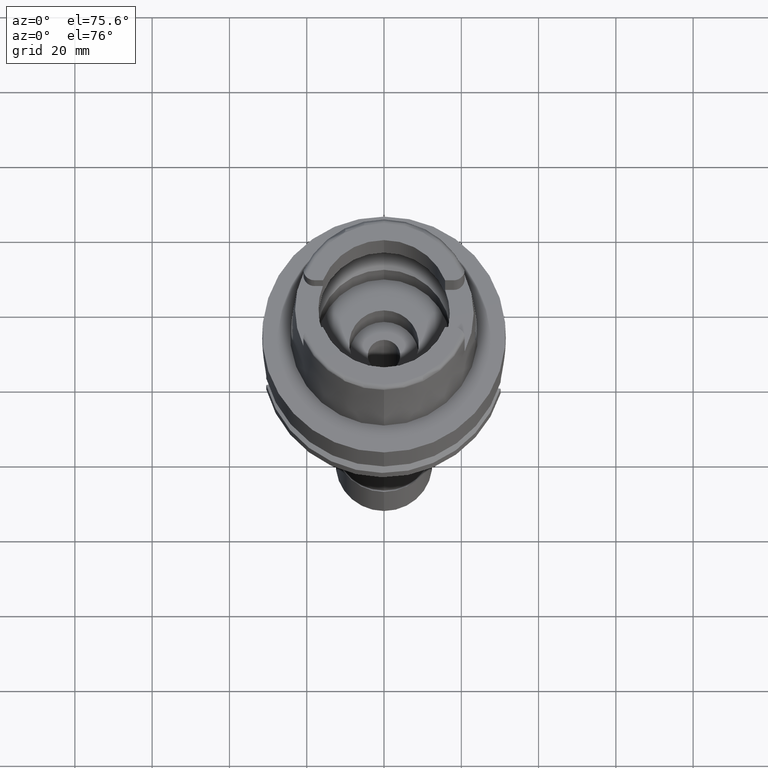
[diagram: clean part render]
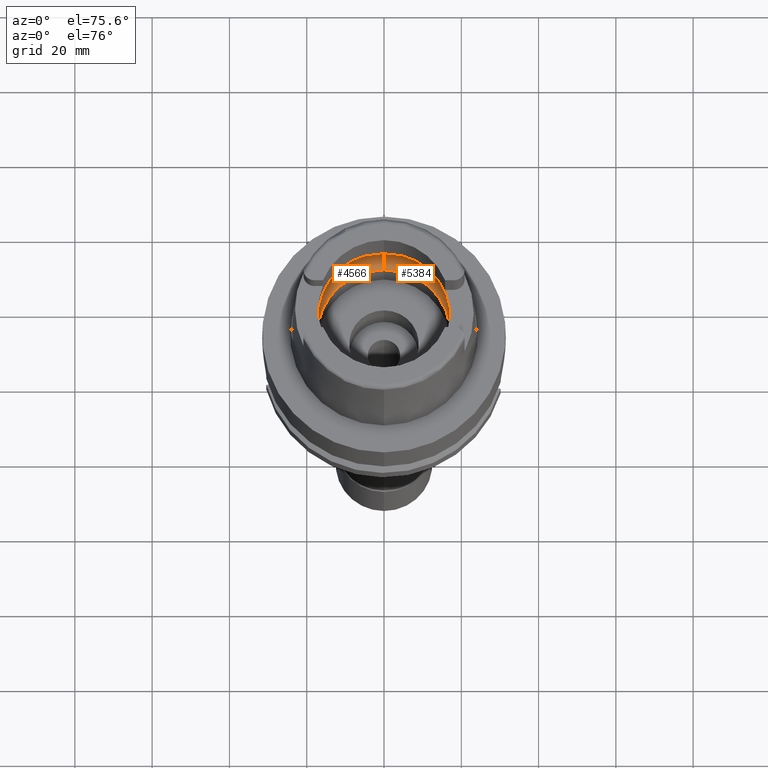
[diagram: same view with one multi-face feature highlighted, each face labeled with its STEP entity id]
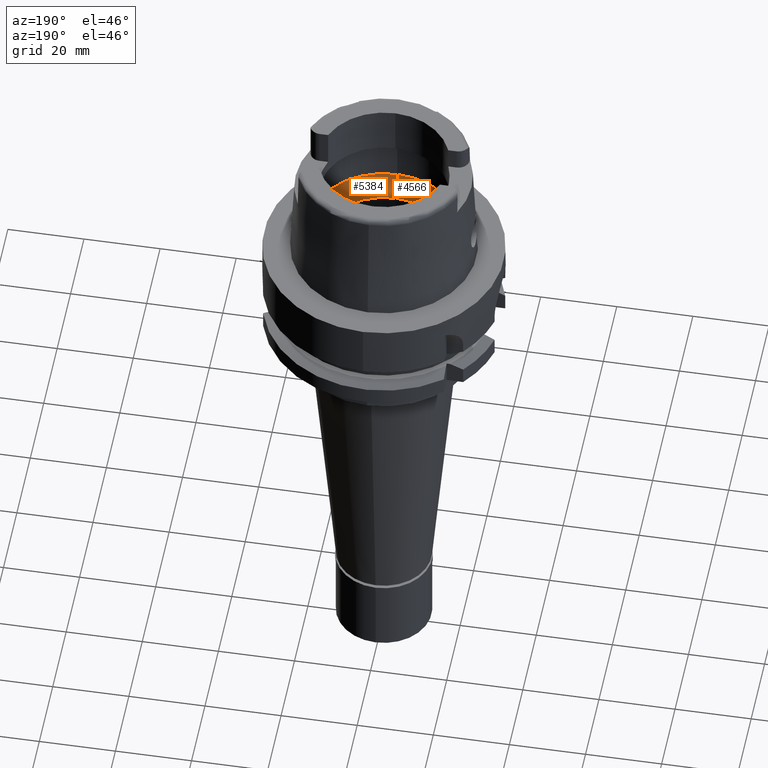
[diagram: same view with one multi-face feature highlighted, each face labeled with its STEP entity id]
A machine part, auxiliary view. The highlighted faces form ONE feature: a constant-radius fillet chain: 2 tangent blend faces with common blend radius 8 mm. The faces share edges in the B-rep.
A second angle (auxiliary view) of the same feature is appended — it is thin or edge-on in the first view.
Their STEP definitions:
[1] entity #4566 (Torus):
#82 = CARTESIAN_POINT ( 'NONE',  ( 0.0000000000000000000, 0.0000000000000000000, 6.186348233825000875 ) ) ;
#93 = CARTESIAN_POINT ( 'NONE',  ( -19.86453683446996266, -2.328760709817148111, 6.053898515773700417 ) ) ;
#103 = DIRECTION ( 'NONE',  ( 0.0000000000000000000, 1.000000000000000000, 0.0000000000000000000 ) ) ;
#300 = CIRCLE ( 'NONE', #3393, 7.999999999999992895 ) ;
#459 = DIRECTION ( 'NONE',  ( 0.0000000000000000000, 0.0000000000000000000, 1.000000000000000000 ) ) ;
#461 = CARTESIAN_POINT ( 'NONE',  ( -19.88058468752640806, -2.158466029911068951, 5.925243478961304433 ) ) ;
#463 = AXIS2_PLACEMENT_3D ( 'NONE', #82, #5160, #1384 ) ;
#500 = FACE_OUTER_BOUND ( 'NONE', #4310, .T. ) ;
#515 = CARTESIAN_POINT ( 'NONE',  ( -19.92466831866535770, -1.358331184285348270, 5.504646393194166265 ) ) ;
#556 = DIRECTION ( 'NONE',  ( 0.0000000000000000000, -1.000000000000000000, 0.0000000000000000000 ) ) ;
#574 = CARTESIAN_POINT ( 'NONE',  ( -19.93856410866583317, -0.9461212226835923333, 5.348254255821970560 ) ) ;
#677 = CARTESIAN_POINT ( 'NONE',  ( -19.90995254882344412, 1.795933974831515068, 5.670404978818013753 ) ) ;
#803 = DIRECTION ( 'NONE',  ( 1.000000000000000000, 0.0000000000000000000, 0.0000000000000000000 ) ) ;
#873 = CARTESIAN_POINT ( 'NONE',  ( 0.0000000000000000000, 17.25000000000000000, 0.1500000000000999700 ) ) ;
#888 = CARTESIAN_POINT ( 'NONE',  ( 0.0000000000000000000, -12.00000000000000000, 6.186348233825000875 ) ) ;
#963 = CARTESIAN_POINT ( 'NONE',  ( -19.91447752810589833, -1.610669004317299313, 5.613000827215236299 ) ) ;
#987 = CARTESIAN_POINT ( 'NONE',  ( -19.84575864665999845, -2.479085262491000030, 6.186348233825000875 ) ) ;
#994 = DIRECTION ( 'NONE',  ( 0.0000000000000000000, -0.6562500000000006661, -0.7545435292281016393 ) ) ;
#1007 = CIRCLE ( 'NONE', #3622, 17.25000000000000000 ) ;
#1239 = EDGE_CURVE ( 'NONE', #5267, #4992, #4741, .T. ) ;
#1272 = DIRECTION ( 'NONE',  ( 0.0000000000000000000, 0.6562500000000006661, -0.7545435292281016393 ) ) ;
#1317 = CARTESIAN_POINT ( 'NONE',  ( -19.92517003708521273, -1.343826440312797077, 5.499044281752649255 ) ) ;
#1333 = CARTESIAN_POINT ( 'NONE',  ( 0.0000000000000000000, -17.25000000000000000, 0.1500000000000999700 ) ) ;
#1379 = CARTESIAN_POINT ( 'NONE',  ( 0.0000000000000000000, 0.0000000000000000000, 6.186348233825000875 ) ) ;
#1384 = DIRECTION ( 'NONE',  ( -0.9922879323327794543, 0.1239542631244973381, 0.0000000000000000000 ) ) ;
#1520 = CARTESIAN_POINT ( 'NONE',  ( -19.94501428475999916, 0.0000000000000000000, 5.250000000000000000 ) ) ;
#1522 = AXIS2_PLACEMENT_3D ( 'NONE', #1379, #3094, #103 ) ;
#1533 = AXIS2_PLACEMENT_3D ( 'NONE', #4136, #803, #1272 ) ;
#1550 = CARTESIAN_POINT ( 'NONE',  ( -19.92705277426681576, 1.287130182688421165, 5.477772523843790431 ) ) ;
#1551 = VERTEX_POINT ( 'NONE', #3120 ) ;
#1633 = CARTESIAN_POINT ( 'NONE',  ( -19.92839760417749062, 1.244563448290384899, 5.462382440187010246 ) ) ;
#1693 = VERTEX_POINT ( 'NONE', #2759 ) ;
#1698 = CARTESIAN_POINT ( 'NONE',  ( -19.90653714044385936, -1.770134880955051226, 5.691950022312413537 ) ) ;
#1805 = ORIENTED_EDGE ( 'NONE', *, *, #3163, .F. ) ;
#1851 = EDGE_CURVE ( 'NONE', #2835, #2870, #1007, .T. ) ;
#1917 = CARTESIAN_POINT ( 'NONE',  ( 0.0000000000000000000, -20.00000000000000000, 6.186348233825000875 ) ) ;
#1960 = CARTESIAN_POINT ( 'NONE',  ( -19.93095498564698076, 1.158122524600810666, 5.432638017440244660 ) ) ;
#2018 = CARTESIAN_POINT ( 'NONE',  ( -19.92606541085463689, 1.317269455711140846, 5.488968463726680014 ) ) ;
#2127 = ORIENTED_EDGE ( 'NONE', *, *, #3196, .F. ) ;
#2143 = CARTESIAN_POINT ( 'NONE',  ( -19.92546218847456529, -1.335248582686434426, 5.495766530070138600 ) ) ;
#2170 = ORIENTED_EDGE ( 'NONE', *, *, #4491, .F. ) ;
#2227 = CARTESIAN_POINT ( 'NONE',  ( -19.92207706994746985, -1.430236285583133204, 5.533216425421237261 ) ) ;
#2350 = CARTESIAN_POINT ( 'NONE',  ( -19.88331748051938064, 2.178416478297318104, 5.921431458854276464 ) ) ;
#2759 = CARTESIAN_POINT ( 'NONE',  ( 0.0000000000000000000, 20.00000000000000000, 6.186348233825000875 ) ) ;
#2762 = AXIS2_PLACEMENT_3D ( 'NONE', #3190, #4744, #556 ) ;
#2835 = VERTEX_POINT ( 'NONE', #873 ) ;
#2870 = VERTEX_POINT ( 'NONE', #1333 ) ;
#3033 = CARTESIAN_POINT ( 'NONE',  ( -19.94501428475999916, 0.0000000000000000000, 5.250000000000000000 ) ) ;
#3094 = DIRECTION ( 'NONE',  ( 0.0000000000000000000, 0.0000000000000000000, 1.000000000000000000 ) ) ;
#3120 = CARTESIAN_POINT ( 'NONE',  ( -19.84575864665999845, -2.479085262491000030, 6.186348233825000875 ) ) ;
#3127 = TOROIDAL_SURFACE ( 'NONE', #1522, 12.00000000000000000, 8.000000000000000000 ) ;
#3163 = EDGE_CURVE ( 'NONE', #4992, #1693, #4855, .T. ) ;
#3190 = CARTESIAN_POINT ( 'NONE',  ( 0.0000000000000000000, 0.0000000000000000000, 6.186348233825000875 ) ) ;
#3196 = EDGE_CURVE ( 'NONE', #3910, #1551, #4246, .T. ) ;
#3327 = CARTESIAN_POINT ( 'NONE',  ( -19.94340174866101734, 0.4850934535354030630, 5.274617952747172822 ) ) ;
#3328 = ORIENTED_EDGE ( 'NONE', *, *, #5071, .F. ) ;
#3393 = AXIS2_PLACEMENT_3D ( 'NONE', #888, #4243, #994 ) ;
#3423 = CARTESIAN_POINT ( 'NONE',  ( -19.91819175305377243, -1.528964846757111973, 5.574905751837347267 ) ) ;
#3513 = B_SPLINE_CURVE_WITH_KNOTS ( 'NONE', 3,
 ( #987, #93, #461, #5089, #1698, #963, #3423, #2227, #5062, #515, #1317, #2143, #574, #4673, #3033 ),
 .UNSPECIFIED., .F., .F.,
 ( 4, 2, 2, 1, 1, 1, 2, 2, 4 ),
 ( 0.0000000000000000000, 0.2500000000000016653, 0.3750000000000023870, 0.4375000000000028866, 0.4687500000000030531, 0.4843750000000031641, 0.4921875000000032196, 0.5000000000000032196, 1.000000000000000000 ),
 .UNSPECIFIED. ) ;
#3609 = CARTESIAN_POINT ( 'NONE',  ( -19.94501428475999916, 0.0000000000000000000, 5.250000000000000000 ) ) ;
#3622 = AXIS2_PLACEMENT_3D ( 'NONE', #3871, #459, #4315 ) ;
#3624 = CARTESIAN_POINT ( 'NONE',  ( -19.93654847024033927, 0.9262661514275534191, 5.364596242157149142 ) ) ;
#3778 = ORIENTED_EDGE ( 'NONE', *, *, #1239, .F. ) ;
#3871 = CARTESIAN_POINT ( 'NONE',  ( 0.0000000000000000000, 0.0000000000000000000, 0.1500000000000999700 ) ) ;
#3873 = CARTESIAN_POINT ( 'NONE',  ( -19.84575864665999845, 2.479085262489999941, 6.186348233825000875 ) ) ;
#3910 = VERTEX_POINT ( 'NONE', #1917 ) ;
#4023 = ORIENTED_EDGE ( 'NONE', *, *, #4297, .T. ) ;
#4136 = CARTESIAN_POINT ( 'NONE',  ( 0.0000000000000000000, 12.00000000000000000, 6.186348233825000875 ) ) ;
#4138 = CARTESIAN_POINT ( 'NONE',  ( -19.93292026401761419, 1.081805289724191210, 5.409024550128566311 ) ) ;
#4155 = ORIENTED_EDGE ( 'NONE', *, *, #1851, .F. ) ;
#4243 = DIRECTION ( 'NONE',  ( -1.000000000000000000, 0.0000000000000000000, 0.0000000000000000000 ) ) ;
#4246 = CIRCLE ( 'NONE', #2762, 20.00000000000000000 ) ;
#4297 = EDGE_CURVE ( 'NONE', #2835, #1693, #5217, .T. ) ;
#4310 = EDGE_LOOP ( 'NONE', ( #2127, #2170, #4155, #4023, #1805, #3778, #3328 ) ) ;
#4315 = DIRECTION ( 'NONE',  ( 0.0000000000000000000, 1.000000000000000000, 0.0000000000000000000 ) ) ;
#4447 = CARTESIAN_POINT ( 'NONE',  ( -19.92590934067762731, 1.321967662511047470, 5.490731940949380885 ) ) ;
#4491 = EDGE_CURVE ( 'NONE', #2870, #3910, #300, .T. ) ;
#4566 = ADVANCED_FACE ( 'NONE', ( #500 ), #3127, .F. ) ;
#4673 = CARTESIAN_POINT ( 'NONE',  ( -19.94501428475999560, -0.4961209670605932209, 5.249999999999998224 ) ) ;
#4741 = B_SPLINE_CURVE_WITH_KNOTS ( 'NONE', 3,
 ( #1520, #4885, #3327, #4988, #3624, #4138, #1960, #1633, #1550, #4911, #2018, #4447, #677, #2350, #5302 ),
 .UNSPECIFIED., .F., .F.,
 ( 4, 2, 2, 1, 1, 1, 2, 2, 4 ),
 ( 0.0000000000000000000, 0.2500000000000037748, 0.3750000000000058287, 0.4375000000000067168, 0.4687500000000069944, 0.4843750000000072720, 0.4921875000000072720, 0.5000000000000072164, 1.000000000000000000 ),
 .UNSPECIFIED. ) ;
#4744 = DIRECTION ( 'NONE',  ( 0.0000000000000000000, 0.0000000000000000000, -1.000000000000000000 ) ) ;
#4855 = CIRCLE ( 'NONE', #463, 20.00000000000001421 ) ;
#4885 = CARTESIAN_POINT ( 'NONE',  ( -19.94501428476000271, 0.2480393703315448006, 5.249999999999999112 ) ) ;
#4911 = CARTESIAN_POINT ( 'NONE',  ( -19.92646224591025472, 1.305232515153943673, 5.484475949585862153 ) ) ;
#4988 = CARTESIAN_POINT ( 'NONE',  ( -19.93856414036406477, 0.8186926599981305674, 5.338707319452686839 ) ) ;
#4992 = VERTEX_POINT ( 'NONE', #3873 ) ;
#5062 = CARTESIAN_POINT ( 'NONE',  ( -19.92390774200794112, -1.380028552273980136, 5.513104237275524788 ) ) ;
#5071 = EDGE_CURVE ( 'NONE', #1551, #5267, #3513, .T. ) ;
#5089 = CARTESIAN_POINT ( 'NONE',  ( -19.90056096498078375, -1.871180422678105693, 5.748256676446665381 ) ) ;
#5160 = DIRECTION ( 'NONE',  ( 0.0000000000000000000, 0.0000000000000000000, -1.000000000000000000 ) ) ;
#5217 = CIRCLE ( 'NONE', #1533, 7.999999999999992895 ) ;
#5267 = VERTEX_POINT ( 'NONE', #3609 ) ;
#5302 = CARTESIAN_POINT ( 'NONE',  ( -19.84575864665999845, 2.479085262489999941, 6.186348233825000875 ) ) ;
[2] entity #5384 (Torus):
#271 = DIRECTION ( 'NONE',  ( 0.0000000000000000000, 0.0000000000000000000, 1.000000000000000000 ) ) ;
#300 = CIRCLE ( 'NONE', #3393, 7.999999999999992895 ) ;
#306 = CARTESIAN_POINT ( 'NONE',  ( 0.0000000000000000000, 0.0000000000000000000, 6.186348233825000875 ) ) ;
#326 = CARTESIAN_POINT ( 'NONE',  ( 19.92466859728581952, 1.358323626958147345, 5.504643456233413445 ) ) ;
#377 = CARTESIAN_POINT ( 'NONE',  ( 19.94501428475999560, 0.4961178817713813860, 5.250000000000000888 ) ) ;
#547 = CARTESIAN_POINT ( 'NONE',  ( 0.0000000000000000000, 0.0000000000000000000, 6.186348233825000875 ) ) ;
#582 = DIRECTION ( 'NONE',  ( 0.0000000000000000000, 0.0000000000000000000, -1.000000000000000000 ) ) ;
#714 = ORIENTED_EDGE ( 'NONE', *, *, #4635, .F. ) ;
#764 = CARTESIAN_POINT ( 'NONE',  ( 19.94340172547762435, -0.4850964740021785904, 5.274618261423839272 ) ) ;
#792 = EDGE_LOOP ( 'NONE', ( #3847, #714, #5442, #4291, #4934, #1142, #1486 ) ) ;
#803 = DIRECTION ( 'NONE',  ( 1.000000000000000000, 0.0000000000000000000, 0.0000000000000000000 ) ) ;
#817 = CARTESIAN_POINT ( 'NONE',  ( 19.94501428475999560, -0.2480409225904866288, 5.249999999999998224 ) ) ;
#873 = CARTESIAN_POINT ( 'NONE',  ( 0.0000000000000000000, 17.25000000000000000, 0.1500000000000999700 ) ) ;
#888 = CARTESIAN_POINT ( 'NONE',  ( 0.0000000000000000000, -12.00000000000000000, 6.186348233825000875 ) ) ;
#948 = DIRECTION ( 'NONE',  ( 0.0000000000000000000, 1.000000000000000000, 0.0000000000000000000 ) ) ;
#994 = DIRECTION ( 'NONE',  ( 0.0000000000000000000, -0.6562500000000006661, -0.7545435292281016393 ) ) ;
#1050 = EDGE_CURVE ( 'NONE', #5446, #3910, #3741, .T. ) ;
#1055 = CARTESIAN_POINT ( 'NONE',  ( 19.88058486986654572, 2.158464112384509193, 5.925242031513535679 ) ) ;
#1060 = FACE_OUTER_BOUND ( 'NONE', #792, .T. ) ;
#1086 = DIRECTION ( 'NONE',  ( 0.0000000000000000000, 1.000000000000000000, 0.0000000000000000000 ) ) ;
#1134 = CARTESIAN_POINT ( 'NONE',  ( 19.84575864665999845, 2.479085262491000030, 6.186348233825000875 ) ) ;
#1142 = ORIENTED_EDGE ( 'NONE', *, *, #1050, .F. ) ;
#1144 = EDGE_CURVE ( 'NONE', #2870, #2835, #3316, .T. ) ;
#1181 = CARTESIAN_POINT ( 'NONE',  ( 19.92839736527998795, -1.244570816102732236, 5.462385030248712248 ) ) ;
#1217 = CARTESIAN_POINT ( 'NONE',  ( 19.90653740763088919, 1.770130309642983013, 5.691947549107391424 ) ) ;
#1264 = CARTESIAN_POINT ( 'NONE',  ( 19.92207735139349367, 1.430229258461773956, 5.533213523230517517 ) ) ;
#1272 = DIRECTION ( 'NONE',  ( 0.0000000000000000000, 0.6562500000000006661, -0.7545435292281016393 ) ) ;
#1333 = CARTESIAN_POINT ( 'NONE',  ( 0.0000000000000000000, -17.25000000000000000, 0.1500000000000999700 ) ) ;
#1486 = ORIENTED_EDGE ( 'NONE', *, *, #3810, .F. ) ;
#1533 = AXIS2_PLACEMENT_3D ( 'NONE', #4136, #803, #1272 ) ;
#1602 = AXIS2_PLACEMENT_3D ( 'NONE', #547, #582, #948 ) ;
#1631 = AXIS2_PLACEMENT_3D ( 'NONE', #4802, #3574, #5249 ) ;
#1670 = CARTESIAN_POINT ( 'NONE',  ( 19.93856420101220195, 0.9461154250117944642, 5.348253029309250728 ) ) ;
#1690 = CARTESIAN_POINT ( 'NONE',  ( 19.92606513842726912, -1.317277204138124880, 5.488971370721959175 ) ) ;
#1693 = VERTEX_POINT ( 'NONE', #2759 ) ;
#1883 = AXIS2_PLACEMENT_3D ( 'NONE', #306, #271, #1086 ) ;
#1917 = CARTESIAN_POINT ( 'NONE',  ( 0.0000000000000000000, -20.00000000000000000, 6.186348233825000875 ) ) ;
#2029 = CARTESIAN_POINT ( 'NONE',  ( 19.92590906290987363, -1.321975527286320506, 5.490734903793806687 ) ) ;
#2052 = CIRCLE ( 'NONE', #1602, 20.00000000000000000 ) ;
#2114 = CARTESIAN_POINT ( 'NONE',  ( 19.93856404763053547, -0.8186976556962597407, 5.338708415004484564 ) ) ;
#2158 = AXIS2_PLACEMENT_3D ( 'NONE', #3076, #3946, #3193 ) ;
#2376 = B_SPLINE_CURVE_WITH_KNOTS ( 'NONE', 3,
 ( #4541, #817, #764, #2114, #4945, #3738, #2887, #1181, #3788, #2864, #1690, #2029, #4151, #3709, #2831 ),
 .UNSPECIFIED., .F., .F.,
 ( 4, 2, 2, 1, 1, 1, 2, 2, 4 ),
 ( 0.0000000000000000000, 0.2499999999999987232, 0.3749999999999981126, 0.4374999999999977796, 0.4687499999999976130, 0.4843749999999973910, 0.4921874999999975020, 0.4999999999999975575, 1.000000000000000000 ),
 .UNSPECIFIED. ) ;
#2451 = CARTESIAN_POINT ( 'NONE',  ( 19.92546246839948410, 1.335240779489388130, 5.495763556830105756 ) ) ;
#2475 = CARTESIAN_POINT ( 'NONE',  ( 19.92517031495895097, 1.343818775761117967, 5.499041339644736404 ) ) ;
#2759 = CARTESIAN_POINT ( 'NONE',  ( 0.0000000000000000000, 20.00000000000000000, 6.186348233825000875 ) ) ;
#2831 = CARTESIAN_POINT ( 'NONE',  ( 19.84575864665999845, -2.479085262491000030, 6.186348233825000875 ) ) ;
#2835 = VERTEX_POINT ( 'NONE', #873 ) ;
#2864 = CARTESIAN_POINT ( 'NONE',  ( 19.92646197918816497, -1.305240201015200885, 5.484478803106744849 ) ) ;
#2870 = VERTEX_POINT ( 'NONE', #1333 ) ;
#2887 = CARTESIAN_POINT ( 'NONE',  ( 19.93095478351687788, -1.158129430943444449, 5.432640251379964980 ) ) ;
#2892 = CARTESIAN_POINT ( 'NONE',  ( 19.91447780742437246, 1.610663291711310841, 5.612998104004511823 ) ) ;
#3076 = CARTESIAN_POINT ( 'NONE',  ( 0.0000000000000000000, 0.0000000000000000000, 6.186348233825000875 ) ) ;
#3125 = TOROIDAL_SURFACE ( 'NONE', #1883, 12.00000000000000000, 8.000000000000000000 ) ;
#3156 = CARTESIAN_POINT ( 'NONE',  ( 19.86453694063900954, 2.328759859908619223, 6.053897766926341184 ) ) ;
#3193 = DIRECTION ( 'NONE',  ( 0.9922879323327794543, -0.1239542631244973381, 0.0000000000000000000 ) ) ;
#3316 = CIRCLE ( 'NONE', #1631, 17.25000000000000000 ) ;
#3393 = AXIS2_PLACEMENT_3D ( 'NONE', #888, #4243, #994 ) ;
#3480 = CARTESIAN_POINT ( 'NONE',  ( 19.94501428475999916, 0.0000000000000000000, 5.250000000000000000 ) ) ;
#3574 = DIRECTION ( 'NONE',  ( 0.0000000000000000000, 0.0000000000000000000, 1.000000000000000000 ) ) ;
#3617 = CARTESIAN_POINT ( 'NONE',  ( 19.84575864665999845, 2.479085262491000030, 6.186348233825000875 ) ) ;
#3709 = CARTESIAN_POINT ( 'NONE',  ( 19.88331726735226113, -2.178418184679663749, 5.921432962333624594 ) ) ;
#3722 = CARTESIAN_POINT ( 'NONE',  ( 19.84575864665999845, -2.479085262491000030, 6.186348233825000875 ) ) ;
#3738 = CARTESIAN_POINT ( 'NONE',  ( 19.93292009014225385, -1.081811776603662567, 5.409026499425241497 ) ) ;
#3741 = CIRCLE ( 'NONE', #2158, 20.00000000000001421 ) ;
#3770 = CARTESIAN_POINT ( 'NONE',  ( 19.92390802166061903, 1.380021155214873119, 5.513101308918829879 ) ) ;
#3788 = CARTESIAN_POINT ( 'NONE',  ( 19.92705251603473471, -1.287137774195317608, 5.477775297526381593 ) ) ;
#3810 = EDGE_CURVE ( 'NONE', #4636, #5446, #2376, .T. ) ;
#3847 = ORIENTED_EDGE ( 'NONE', *, *, #4822, .F. ) ;
#3910 = VERTEX_POINT ( 'NONE', #1917 ) ;
#3946 = DIRECTION ( 'NONE',  ( 0.0000000000000000000, 0.0000000000000000000, -1.000000000000000000 ) ) ;
#4136 = CARTESIAN_POINT ( 'NONE',  ( 0.0000000000000000000, 12.00000000000000000, 6.186348233825000875 ) ) ;
#4151 = CARTESIAN_POINT ( 'NONE',  ( 19.90995224292280597, -1.795938310847502217, 5.670407811397693898 ) ) ;
#4243 = DIRECTION ( 'NONE',  ( -1.000000000000000000, 0.0000000000000000000, 0.0000000000000000000 ) ) ;
#4291 = ORIENTED_EDGE ( 'NONE', *, *, #1144, .F. ) ;
#4297 = EDGE_CURVE ( 'NONE', #2835, #1693, #5217, .T. ) ;
#4491 = EDGE_CURVE ( 'NONE', #2870, #3910, #300, .T. ) ;
#4541 = CARTESIAN_POINT ( 'NONE',  ( 19.94501428475999916, 0.0000000000000000000, 5.250000000000000000 ) ) ;
#4635 = EDGE_CURVE ( 'NONE', #1693, #4817, #2052, .T. ) ;
#4636 = VERTEX_POINT ( 'NONE', #3480 ) ;
#4802 = CARTESIAN_POINT ( 'NONE',  ( 0.0000000000000000000, 0.0000000000000000000, 0.1500000000000999700 ) ) ;
#4817 = VERTEX_POINT ( 'NONE', #3617 ) ;
#4822 = EDGE_CURVE ( 'NONE', #4817, #4636, #4823, .T. ) ;
#4823 = B_SPLINE_CURVE_WITH_KNOTS ( 'NONE', 3,
 ( #1134, #3156, #1055, #4845, #1217, #2892, #4927, #1264, #3770, #326, #2475, #2451, #1670, #377, #5374 ),
 .UNSPECIFIED., .F., .F.,
 ( 4, 2, 2, 1, 1, 1, 2, 2, 4 ),
 ( 0.0000000000000000000, 0.2499999999999978906, 0.3749999999999969469, 0.4374999999999963363, 0.4687499999999959477, 0.4843749999999960587, 0.4921874999999960032, 0.4999999999999960032, 1.000000000000000000 ),
 .UNSPECIFIED. ) ;
#4845 = CARTESIAN_POINT ( 'NONE',  ( 19.90056121658070509, 1.871176557661653028, 5.748254428408765548 ) ) ;
#4927 = CARTESIAN_POINT ( 'NONE',  ( 19.91819203562567253, 1.528958543118313473, 5.574902925593662850 ) ) ;
#4934 = ORIENTED_EDGE ( 'NONE', *, *, #4491, .T. ) ;
#4945 = CARTESIAN_POINT ( 'NONE',  ( 19.93654834852757674, -0.9262717684427986820, 5.364597653862788640 ) ) ;
#5217 = CIRCLE ( 'NONE', #1533, 7.999999999999992895 ) ;
#5249 = DIRECTION ( 'NONE',  ( 0.0000000000000000000, -1.000000000000000000, 0.0000000000000000000 ) ) ;
#5374 = CARTESIAN_POINT ( 'NONE',  ( 19.94501428475999916, 0.0000000000000000000, 5.250000000000000000 ) ) ;
#5384 = ADVANCED_FACE ( 'NONE', ( #1060 ), #3125, .F. ) ;
#5442 = ORIENTED_EDGE ( 'NONE', *, *, #4297, .F. ) ;
#5446 = VERTEX_POINT ( 'NONE', #3722 ) ;